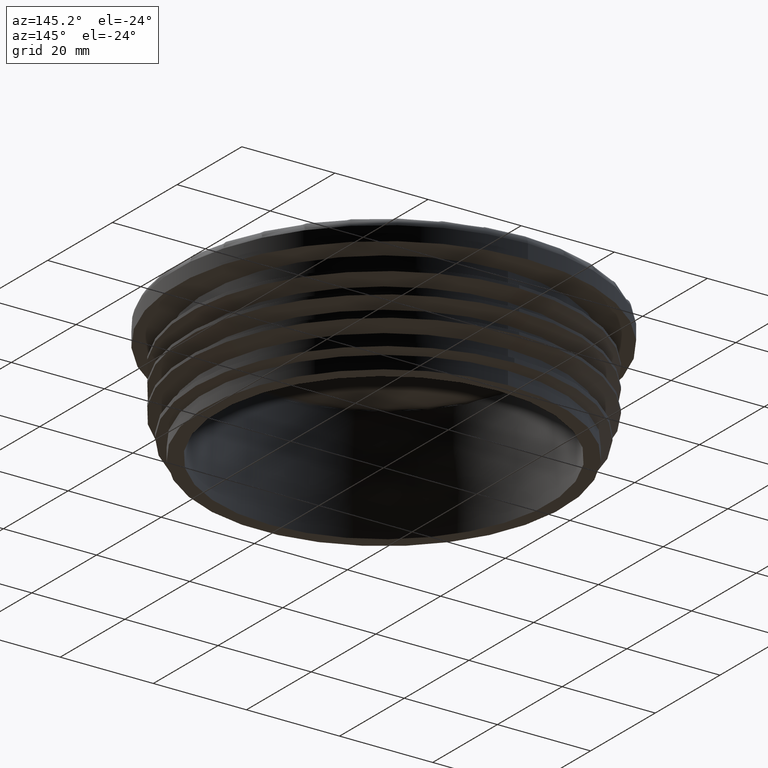
[diagram: clean part render]
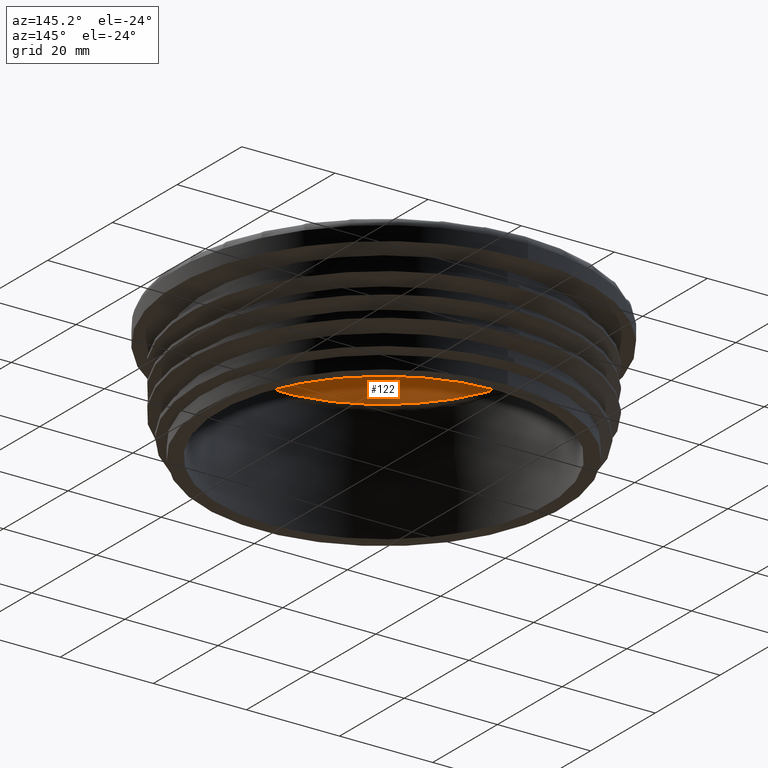
[diagram: same view with one face highlighted and labeled with its STEP entity id]
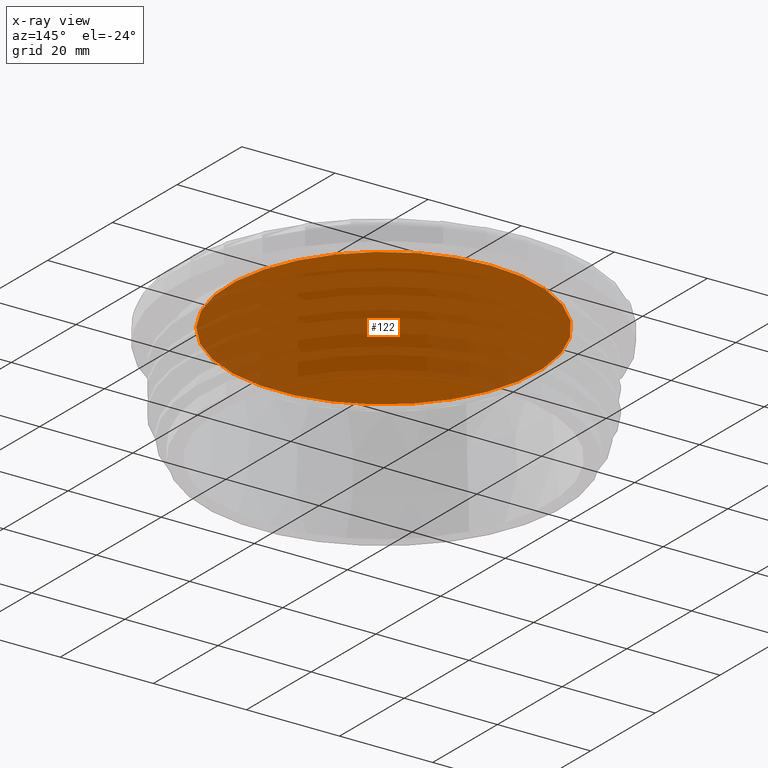
[diagram: x-ray of the same camera — body ghosted, the highlighted face saturated]
A machine part, auxiliary view. The second image highlights one B-rep face of the part: STEP entity #122.
The next image is the same camera in x-ray: the body ghosted, the highlighted face saturated — about 81% of this face is hidden behind the body in this view.
In plain terms, the highlighted planar face has unit normal (0, 0, 1).
Its self-contained STEP definition (entity closure, byte-faithful):
#122 = ADVANCED_FACE( '', ( #293 ), #294, .F. );
#293 = FACE_OUTER_BOUND( '', #697, .T. );
#294 = PLANE( '', #698 );
#697 = EDGE_LOOP( '', ( #1283 ) );
#698 = AXIS2_PLACEMENT_3D( '', #1284, #1285, #1286 );
#1283 = ORIENTED_EDGE( '', *, *, #1628, .T. );
#1284 = CARTESIAN_POINT( '', ( -33.0908409512091, 1.83690953073357E-016, 25.0000000000000 ) );
#1285 = DIRECTION( '', ( 0.000000000000000, 6.12303176911189E-017, 1.00000000000000 ) );
#1286 = DIRECTION( '', ( 0.000000000000000, -1.00000000000000, 6.12303176911189E-017 ) );
#1628 = EDGE_CURVE( '', #1871, #1871, #1872, .T. );
#1871 = VERTEX_POINT( '', #3175 );
#1872 = CIRCLE( '', #3176, 33.0908409512091 );
#3175 = CARTESIAN_POINT( '', ( 0.000000000000000, 33.0908409512091, 25.0000000000000 ) );
#3176 = AXIS2_PLACEMENT_3D( '', #3536, #3537, #3538 );
#3536 = CARTESIAN_POINT( '', ( 0.000000000000000, 1.83690953073358E-016, 25.0000000000000 ) );
#3537 = DIRECTION( '', ( 0.000000000000000, -6.12303176911189E-017, -1.00000000000000 ) );
#3538 = DIRECTION( '', ( 0.000000000000000, 1.00000000000000, -6.12303176911189E-017 ) );